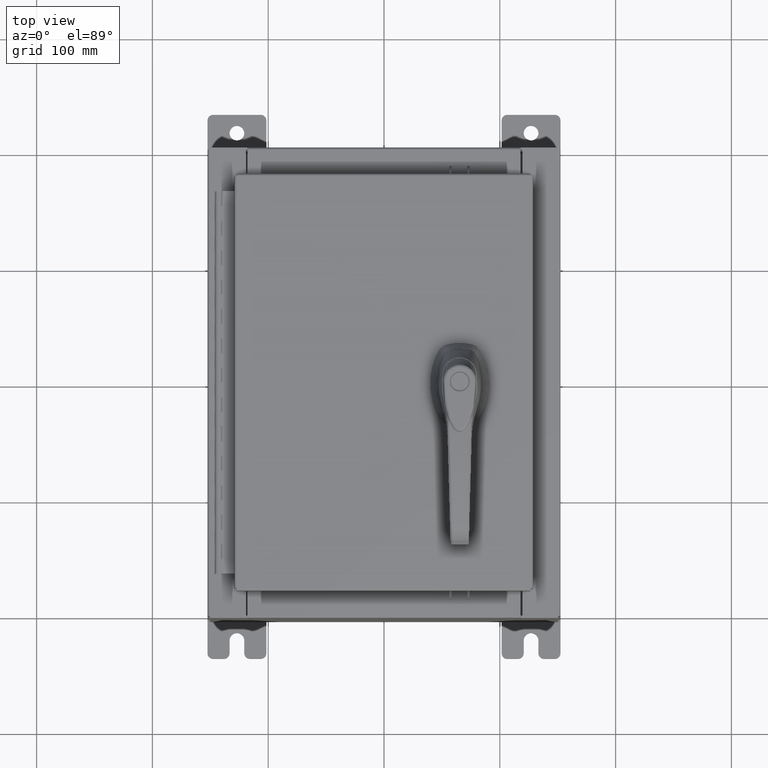
[diagram: clean part render]
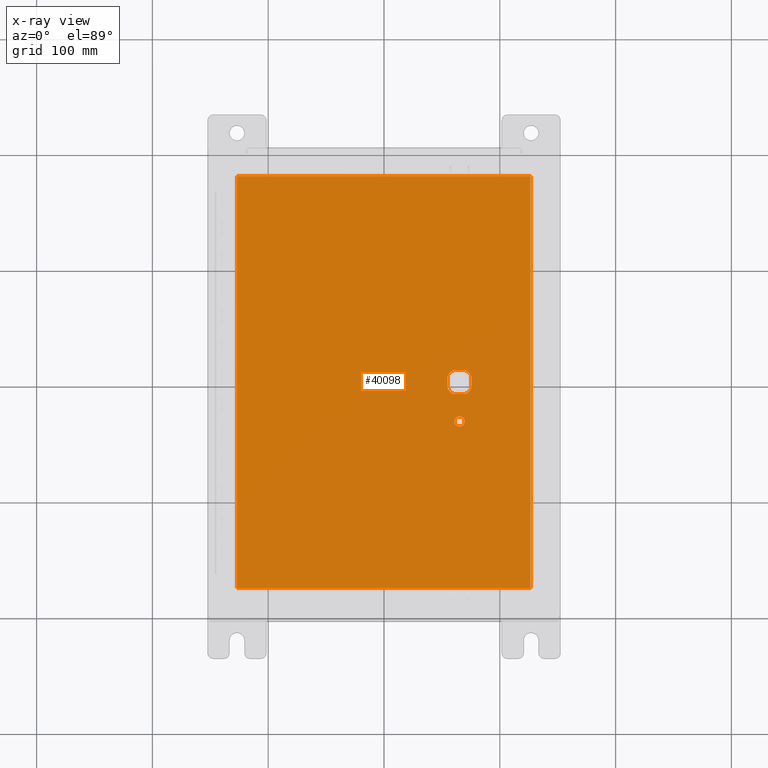
[diagram: x-ray — body ghosted, one internal face saturated and labeled with its STEP entity id]
A machine part, top view, then the same camera in x-ray: the body is ghosted and one INTERNAL B-rep face — a face not visible from any outside direction — is saturated and labeled: STEP entity #40098.
In plain terms, the highlighted planar face has unit normal (0, 0, -1).
Its self-contained STEP definition (entity closure, byte-faithful):
#151 = DIRECTION ( 'NONE',  ( -0.0000000000000000000, -0.0000000000000000000, 1.000000000000000000 ) ) ;
#884 = VERTEX_POINT ( 'NONE', #2672 ) ;
#1697 = CARTESIAN_POINT ( 'NONE',  ( 2.577999999999998500, 0.0000000000000000000, -0.07470000000000003000 ) ) ;
#2672 = CARTESIAN_POINT ( 'NONE',  ( 2.980999999999924400, 0.2002273707563080300, -0.07470000000000003000 ) ) ;
#2720 = DIRECTION ( 'NONE',  ( -0.0000000000000000000, -0.0000000000000000000, 1.000000000000000000 ) ) ;
#2735 = VERTEX_POINT ( 'NONE', #87244 ) ;
#2960 = CARTESIAN_POINT ( 'NONE',  ( 0.0000000000000000000, 0.0000000000000000000, -0.07470000000000000300 ) ) ;
#3940 = ORIENTED_EDGE ( 'NONE', *, *, #61993, .F. ) ;
#8567 = EDGE_CURVE ( 'NONE', #89641, #2735, #80126, .T. ) ;
#8617 = VERTEX_POINT ( 'NONE', #75237 ) ;
#9154 = VECTOR ( 'NONE', #103621, 39.37007874015748100 ) ;
#9501 = VERTEX_POINT ( 'NONE', #59283 ) ;
#9857 = DIRECTION ( 'NONE',  ( -1.000000000000000000, 0.0000000000000000000, 0.0000000000000000000 ) ) ;
#12710 = EDGE_CURVE ( 'NONE', #85804, #89641, #93749, .T. ) ;
#12832 = CARTESIAN_POINT ( 'NONE',  ( 2.577999999999998500, 0.0000000000000000000, -0.07470000000000003000 ) ) ;
#13201 = CARTESIAN_POINT ( 'NONE',  ( 4.990299999999998600, -7.006300000000000400, -0.07470000000000000300 ) ) ;
#14764 = LINE ( 'NONE', #98072, #55705 ) ;
#18126 = LINE ( 'NONE', #77188, #56507 ) ;
#18935 = CARTESIAN_POINT ( 'NONE',  ( 2.577999999999998500, -1.338000000000000100, -0.07470000000000003000 ) ) ;
#19976 = DIRECTION ( 'NONE',  ( 0.0000000000000000000, -1.000000000000000000, 0.0000000000000000000 ) ) ;
#20256 = EDGE_LOOP ( 'NONE', ( #59608, #32652, #57104, #35781, #36132, #93718, #52464, #91792 ) ) ;
#21048 = DIRECTION ( 'NONE',  ( -1.000000000000000000, 0.0000000000000000000, 0.0000000000000000000 ) ) ;
#22450 = CARTESIAN_POINT ( 'NONE',  ( -4.990300000000000400, 7.006299999999998600, -0.07470000000000000300 ) ) ;
#24202 = ORIENTED_EDGE ( 'NONE', *, *, #33678, .F. ) ;
#24784 = EDGE_CURVE ( 'NONE', #53925, #85804, #46469, .T. ) ;
#27140 = DIRECTION ( 'NONE',  ( -1.000000000000000000, 0.0000000000000000000, 0.0000000000000000000 ) ) ;
#27505 = CIRCLE ( 'NONE', #79811, 0.4499999999999156900 ) ;
#28601 = CARTESIAN_POINT ( 'NONE',  ( 2.377772629243688900, 0.4029999999999252000, -0.07470000000000003000 ) ) ;
#28716 = DIRECTION ( 'NONE',  ( 1.000000000000000000, -0.0000000000000000000, -0.0000000000000000000 ) ) ;
#28869 = CARTESIAN_POINT ( 'NONE',  ( 2.749499999999998500, -1.338000000000000100, -0.07470000000000003000 ) ) ;
#30011 = FACE_OUTER_BOUND ( 'NONE', #66048, .T. ) ;
#30620 = VECTOR ( 'NONE', #79793, 39.37007874015748100 ) ;
#32652 = ORIENTED_EDGE ( 'NONE', *, *, #88810, .F. ) ;
#33061 = VERTEX_POINT ( 'NONE', #34260 ) ;
#33678 = EDGE_CURVE ( 'NONE', #46690, #58706, #103280, .T. ) ;
#33683 = VECTOR ( 'NONE', #54644, 39.37007874015748100 ) ;
#34260 = CARTESIAN_POINT ( 'NONE',  ( 2.175000000000072700, 0.2002273707563080300, -0.07470000000000003000 ) ) ;
#34413 = CARTESIAN_POINT ( 'NONE',  ( 2.377772629243688900, -0.4029999999999250300, -0.07470000000000003000 ) ) ;
#34868 = CARTESIAN_POINT ( 'NONE',  ( 2.778227370756308100, -0.4029999999999252000, -0.07470000000000003000 ) ) ;
#35781 = ORIENTED_EDGE ( 'NONE', *, *, #94083, .T. ) ;
#35846 = AXIS2_PLACEMENT_3D ( 'NONE', #1697, #58804, #9857 ) ;
#36132 = ORIENTED_EDGE ( 'NONE', *, *, #56075, .T. ) ;
#37981 = VECTOR ( 'NONE', #28716, 39.37007874015748100 ) ;
#40098 = ADVANCED_FACE ( 'NONE', ( #76094, #30011, #92725 ), #84748, .T. ) ;
#42097 = LINE ( 'NONE', #104107, #30620 ) ;
#43941 = DIRECTION ( 'NONE',  ( -1.000000000000000000, 0.0000000000000000000, -0.0000000000000000000 ) ) ;
#44722 = EDGE_CURVE ( 'NONE', #94686, #65270, #73460, .T. ) ;
#45852 = CARTESIAN_POINT ( 'NONE',  ( 4.990299999999998600, -7.006300000000000400, -0.07469999999999966900 ) ) ;
#46004 = CARTESIAN_POINT ( 'NONE',  ( 4.990299999999998600, 7.006300000000000400, -0.07470000000000021100 ) ) ;
#46417 = CARTESIAN_POINT ( 'NONE',  ( 2.980999999999924400, 4.067195627826724000E-015, -0.07470000000000003000 ) ) ;
#46469 = CIRCLE ( 'NONE', #55376, 0.4499999999999156900 ) ;
#46690 = VERTEX_POINT ( 'NONE', #88594 ) ;
#47072 = DIRECTION ( 'NONE',  ( -0.0000000000000000000, -0.0000000000000000000, 1.000000000000000000 ) ) ;
#47801 = AXIS2_PLACEMENT_3D ( 'NONE', #2960, #92953, #43941 ) ;
#47919 = EDGE_CURVE ( 'NONE', #65270, #94686, #57821, .T. ) ;
#48360 = ORIENTED_EDGE ( 'NONE', *, *, #44722, .T. ) ;
#49011 = CARTESIAN_POINT ( 'NONE',  ( 2.577999999999998500, -1.338000000000000100, -0.07470000000000003000 ) ) ;
#49288 = EDGE_CURVE ( 'NONE', #884, #8617, #66601, .T. ) ;
#49504 = VERTEX_POINT ( 'NONE', #22450 ) ;
#49819 = ORIENTED_EDGE ( 'NONE', *, *, #96482, .F. ) ;
#50523 = DIRECTION ( 'NONE',  ( 1.000000000000000000, 0.0000000000000000000, 0.0000000000000000000 ) ) ;
#51594 = CARTESIAN_POINT ( 'NONE',  ( 2.577999999999998500, 0.0000000000000000000, -0.07470000000000003000 ) ) ;
#52070 = AXIS2_PLACEMENT_3D ( 'NONE', #18935, #76116, #27140 ) ;
#52464 = ORIENTED_EDGE ( 'NONE', *, *, #24784, .T. ) ;
#52585 = LINE ( 'NONE', #46004, #9154 ) ;
#53018 = CARTESIAN_POINT ( 'NONE',  ( 2.175000000000072700, -0.2002273707563079800, -0.07470000000000003000 ) ) ;
#53925 = VERTEX_POINT ( 'NONE', #53018 ) ;
#54644 = DIRECTION ( 'NONE',  ( 1.364372904336406500E-015, -1.000000000000000000, 0.0000000000000000000 ) ) ;
#55376 = AXIS2_PLACEMENT_3D ( 'NONE', #96100, #47072, #104319 ) ;
#55705 = VECTOR ( 'NONE', #82344, 39.37007874015748100 ) ;
#56075 = EDGE_CURVE ( 'NONE', #84902, #33061, #27505, .T. ) ;
#56507 = VECTOR ( 'NONE', #19976, 39.37007874015748100 ) ;
#57104 = ORIENTED_EDGE ( 'NONE', *, *, #49288, .T. ) ;
#57218 = VECTOR ( 'NONE', #62301, 39.37007874015748100 ) ;
#57256 = DIRECTION ( 'NONE',  ( -1.000000000000000000, 0.0000000000000000000, 0.0000000000000000000 ) ) ;
#57821 = CIRCLE ( 'NONE', #52070, 0.1715000000000000700 ) ;
#58706 = VERTEX_POINT ( 'NONE', #13201 ) ;
#58804 = DIRECTION ( 'NONE',  ( -0.0000000000000000000, -0.0000000000000000000, 1.000000000000000000 ) ) ;
#59283 = CARTESIAN_POINT ( 'NONE',  ( 4.990299999999997700, 7.006300000000000400, -0.07470000000000000300 ) ) ;
#59608 = ORIENTED_EDGE ( 'NONE', *, *, #8567, .T. ) ;
#59781 = LINE ( 'NONE', #45852, #57218 ) ;
#59818 = DIRECTION ( 'NONE',  ( -1.000000000000000000, 0.0000000000000000000, 0.0000000000000000000 ) ) ;
#61993 = EDGE_CURVE ( 'NONE', #49504, #46690, #18126, .T. ) ;
#62301 = DIRECTION ( 'NONE',  ( 0.0000000000000000000, 1.000000000000000000, 0.0000000000000000000 ) ) ;
#63805 = AXIS2_PLACEMENT_3D ( 'NONE', #49011, #151, #57256 ) ;
#64634 = ORIENTED_EDGE ( 'NONE', *, *, #47919, .T. ) ;
#65270 = VERTEX_POINT ( 'NONE', #69299 ) ;
#66048 = EDGE_LOOP ( 'NONE', ( #49819, #24202, #3940, #68608 ) ) ;
#66104 = EDGE_LOOP ( 'NONE', ( #48360, #64634 ) ) ;
#66601 = CIRCLE ( 'NONE', #73354, 0.4499999999999156900 ) ;
#68608 = ORIENTED_EDGE ( 'NONE', *, *, #91847, .F. ) ;
#69299 = CARTESIAN_POINT ( 'NONE',  ( 2.406499999999998500, -1.338000000000000100, -0.07470000000000003000 ) ) ;
#70016 = DIRECTION ( 'NONE',  ( -0.0000000000000000000, -0.0000000000000000000, 1.000000000000000000 ) ) ;
#71988 = VECTOR ( 'NONE', #50523, 39.37007874015748100 ) ;
#73354 = AXIS2_PLACEMENT_3D ( 'NONE', #12832, #70016, #21048 ) ;
#73460 = CIRCLE ( 'NONE', #63805, 0.1715000000000000700 ) ;
#75237 = CARTESIAN_POINT ( 'NONE',  ( 2.778227370756308100, 0.4029999999999250300, -0.07470000000000003000 ) ) ;
#76094 = FACE_BOUND ( 'NONE', #66104, .T. ) ;
#76116 = DIRECTION ( 'NONE',  ( -0.0000000000000000000, -0.0000000000000000000, 1.000000000000000000 ) ) ;
#77188 = CARTESIAN_POINT ( 'NONE',  ( -4.990300000000000400, 7.006300000000000400, -0.07470000000000019700 ) ) ;
#79793 = DIRECTION ( 'NONE',  ( -1.000000000000000000, 0.0000000000000000000, 0.0000000000000000000 ) ) ;
#79811 = AXIS2_PLACEMENT_3D ( 'NONE', #51594, #2720, #59818 ) ;
#80126 = CIRCLE ( 'NONE', #35846, 0.4499999999999156900 ) ;
#82344 = DIRECTION ( 'NONE',  ( 0.0000000000000000000, -1.000000000000000000, 0.0000000000000000000 ) ) ;
#83461 = CARTESIAN_POINT ( 'NONE',  ( 0.0000000000000000000, -0.4029999999999252000, -0.07470000000000003000 ) ) ;
#84748 = PLANE ( 'NONE',  #47801 ) ;
#84902 = VERTEX_POINT ( 'NONE', #28601 ) ;
#85804 = VERTEX_POINT ( 'NONE', #34413 ) ;
#85959 = CARTESIAN_POINT ( 'NONE',  ( -4.990300000000000400, -7.006300000000000400, -0.07470000000000021100 ) ) ;
#87244 = CARTESIAN_POINT ( 'NONE',  ( 2.980999999999924400, -0.2002273707563078100, -0.07470000000000003000 ) ) ;
#88594 = CARTESIAN_POINT ( 'NONE',  ( -4.990299999999999500, -7.006300000000000400, -0.07470000000000000300 ) ) ;
#88810 = EDGE_CURVE ( 'NONE', #884, #2735, #96403, .T. ) ;
#89641 = VERTEX_POINT ( 'NONE', #34868 ) ;
#91792 = ORIENTED_EDGE ( 'NONE', *, *, #12710, .T. ) ;
#91847 = EDGE_CURVE ( 'NONE', #9501, #49504, #52585, .T. ) ;
#92725 = FACE_BOUND ( 'NONE', #20256, .T. ) ;
#92953 = DIRECTION ( 'NONE',  ( 0.0000000000000000000, 0.0000000000000000000, -1.000000000000000000 ) ) ;
#93718 = ORIENTED_EDGE ( 'NONE', *, *, #101220, .T. ) ;
#93749 = LINE ( 'NONE', #83461, #71988 ) ;
#94083 = EDGE_CURVE ( 'NONE', #8617, #84902, #42097, .T. ) ;
#94686 = VERTEX_POINT ( 'NONE', #28869 ) ;
#96100 = CARTESIAN_POINT ( 'NONE',  ( 2.577999999999998500, 0.0000000000000000000, -0.07470000000000003000 ) ) ;
#96403 = LINE ( 'NONE', #46417, #33683 ) ;
#96482 = EDGE_CURVE ( 'NONE', #58706, #9501, #59781, .T. ) ;
#98072 = CARTESIAN_POINT ( 'NONE',  ( 2.175000000000072700, 0.0000000000000000000, -0.07470000000000003000 ) ) ;
#101220 = EDGE_CURVE ( 'NONE', #33061, #53925, #14764, .T. ) ;
#103280 = LINE ( 'NONE', #85959, #37981 ) ;
#103621 = DIRECTION ( 'NONE',  ( -1.000000000000000000, -0.0000000000000000000, -0.0000000000000000000 ) ) ;
#104107 = CARTESIAN_POINT ( 'NONE',  ( 0.0000000000000000000, 0.4029999999999252000, -0.07470000000000003000 ) ) ;
#104319 = DIRECTION ( 'NONE',  ( -1.000000000000000000, 8.881784197001256300E-016, 0.0000000000000000000 ) ) ;